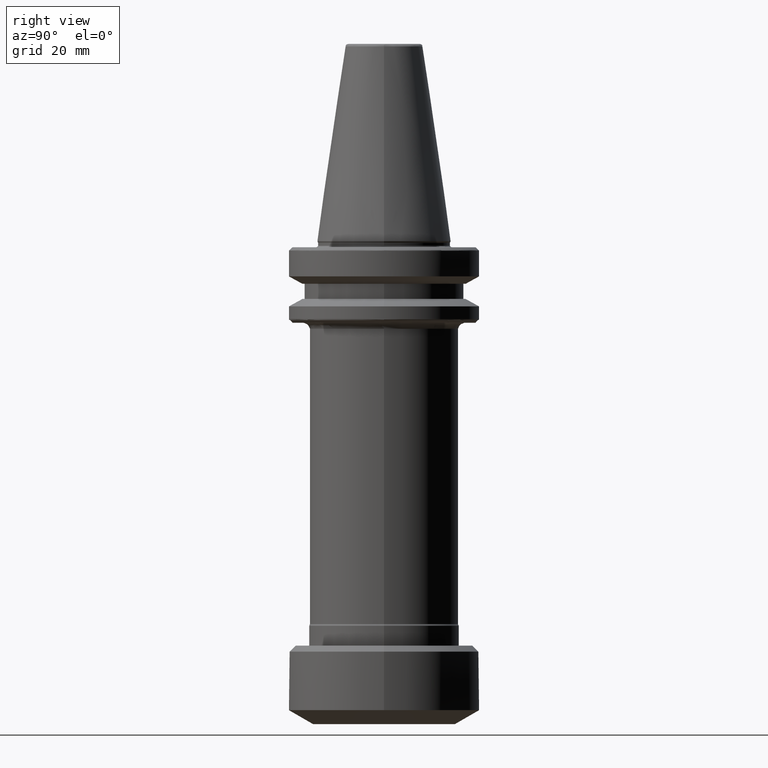
[diagram: clean part render]
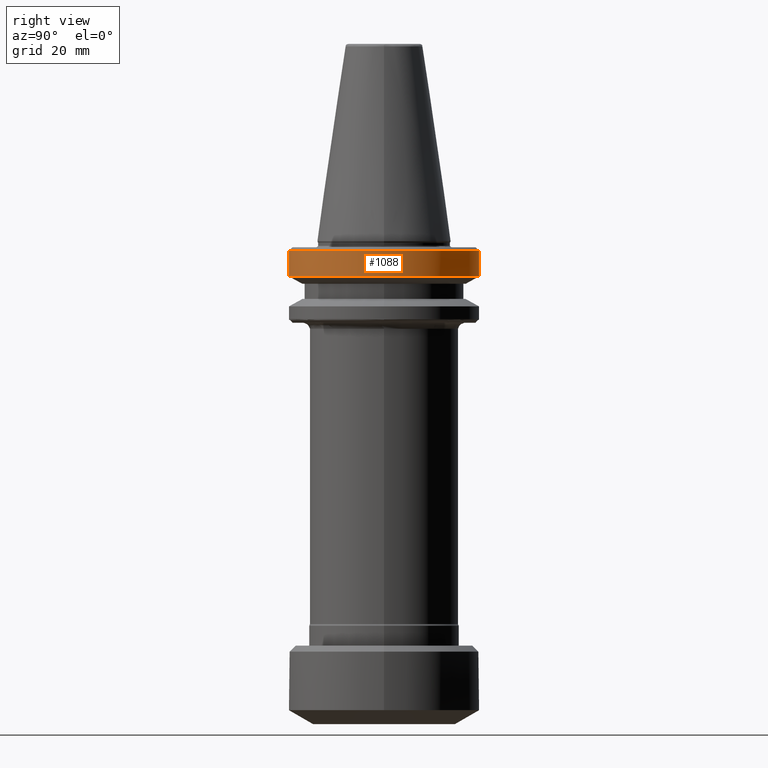
[diagram: same view with one face highlighted and labeled with its STEP entity id]
A machine part, right view. The second image highlights one B-rep face of the part: STEP entity #1088.
In plain terms, the highlighted cylindrical surface (partial cylindrical patch) has radius 31.5 mm, axis along (0, -0, 1).
Its self-contained STEP definition (entity closure, byte-faithful):
#42 = CARTESIAN_POINT ( 'NONE',  ( 0.0000000000000000000, -31.50000000001133300, -3.165685425006476100 ) ) ;
#100 = DIRECTION ( 'NONE',  ( 1.000000000000000000, 0.0000000000000000000, 0.0000000000000000000 ) ) ;
#138 = ORIENTED_EDGE ( 'NONE', *, *, #1094, .F. ) ;
#189 = CARTESIAN_POINT ( 'NONE',  ( 0.0000000000000000000, 0.0000000000000000000, -11.63768073232979100 ) ) ;
#224 = EDGE_CURVE ( 'NONE', #1547, #2257, #3121, .T. ) ;
#537 = VERTEX_POINT ( 'NONE', #42 ) ;
#672 = AXIS2_PLACEMENT_3D ( 'NONE', #3294, #1688, #100 ) ;
#696 = DIRECTION ( 'NONE',  ( 1.000000000000000000, 0.0000000000000000000, -1.514441129821022100E-016 ) ) ;
#779 = CARTESIAN_POINT ( 'NONE',  ( 31.50000000000453000, 0.0000000000000000000, -11.63768073232979100 ) ) ;
#876 = CIRCLE ( 'NONE', #672, 31.50000000000453000 ) ;
#955 = CARTESIAN_POINT ( 'NONE',  ( 31.50000000000453000, -2.828499295505090300E-009, -3.165685425006476100 ) ) ;
#1009 = CARTESIAN_POINT ( 'NONE',  ( 0.0000000000000000000, 0.0000000000000000000, -11.59985799400000100 ) ) ;
#1032 = DIRECTION ( 'NONE',  ( 0.0000000000000000000, -2.753529326947312600E-017, 1.000000000000000000 ) ) ;
#1088 = ADVANCED_FACE ( 'NONE', ( #3043 ), #1556, .T. ) ;
#1094 = EDGE_CURVE ( 'NONE', #2910, #2382, #2428, .T. ) ;
#1165 = EDGE_CURVE ( 'NONE', #537, #2529, #2226, .T. ) ;
#1266 = CARTESIAN_POINT ( 'NONE',  ( 3.857637417315550300E-015, 31.50000000001133300, -3.165685425006476100 ) ) ;
#1291 = CARTESIAN_POINT ( 'NONE',  ( 3.857637417314162700E-015, 31.50000000000000000, -11.59985799400000100 ) ) ;
#1327 = VECTOR ( 'NONE', #3162, 1000.000000000000000 ) ;
#1425 = LINE ( 'NONE', #2543, #2756 ) ;
#1438 = EDGE_CURVE ( 'NONE', #2529, #2910, #2638, .T. ) ;
#1506 = DIRECTION ( 'NONE',  ( -0.0000000000000000000, -0.0000000000000000000, 1.000000000000000000 ) ) ;
#1510 = DIRECTION ( 'NONE',  ( -0.0000000000000000000, -0.0000000000000000000, 1.000000000000000000 ) ) ;
#1547 = VERTEX_POINT ( 'NONE', #779 ) ;
#1556 = CYLINDRICAL_SURFACE ( 'NONE', #2511, 31.50000000000000000 ) ;
#1562 = AXIS2_PLACEMENT_3D ( 'NONE', #189, #1506, #2547 ) ;
#1564 = DIRECTION ( 'NONE',  ( 0.0000000000000000000, 0.0000000000000000000, 1.000000000000000000 ) ) ;
#1634 = EDGE_LOOP ( 'NONE', ( #3182, #2837, #2960, #138, #2920, #1884, #2341, #3272 ) ) ;
#1688 = DIRECTION ( 'NONE',  ( -0.0000000000000000000, -0.0000000000000000000, 1.000000000000000000 ) ) ;
#1731 = DIRECTION ( 'NONE',  ( 0.0000000000000000000, 0.0000000000000000000, 1.000000000000000000 ) ) ;
#1787 = LINE ( 'NONE', #1291, #1327 ) ;
#1825 = CARTESIAN_POINT ( 'NONE',  ( 8.599437156279416100, 30.30345987827941600, -3.165685425344570100 ) ) ;
#1856 = DIRECTION ( 'NONE',  ( 0.0000000000000000000, -1.000000000000000000, 0.0000000000000000000 ) ) ;
#1871 = EDGE_CURVE ( 'NONE', #2126, #537, #1425, .T. ) ;
#1884 = ORIENTED_EDGE ( 'NONE', *, *, #1165, .F. ) ;
#1924 = CARTESIAN_POINT ( 'NONE',  ( 8.717453372812725500, -30.26972095489103200, -3.165685425816283000 ) ) ;
#1979 = AXIS2_PLACEMENT_3D ( 'NONE', #2411, #1731, #696 ) ;
#2126 = VERTEX_POINT ( 'NONE', #3053 ) ;
#2189 = EDGE_CURVE ( 'NONE', #2382, #2218, #2214, .T. ) ;
#2214 = CIRCLE ( 'NONE', #3075, 31.50000000001133300 ) ;
#2218 = VERTEX_POINT ( 'NONE', #1266 ) ;
#2226 = CIRCLE ( 'NONE', #3412, 31.50000000001133300 ) ;
#2257 = VERTEX_POINT ( 'NONE', #3149 ) ;
#2340 = EDGE_CURVE ( 'NONE', #2257, #2218, #1787, .T. ) ;
#2341 = ORIENTED_EDGE ( 'NONE', *, *, #1871, .F. ) ;
#2382 = VERTEX_POINT ( 'NONE', #1825 ) ;
#2411 = CARTESIAN_POINT ( 'NONE',  ( 0.0000000000000000000, 0.0000000000000000000, -3.165685424999995100 ) ) ;
#2428 = CIRCLE ( 'NONE', #1979, 31.50000000000000000 ) ;
#2495 = AXIS2_PLACEMENT_3D ( 'NONE', #3163, #1564, #3431 ) ;
#2511 = AXIS2_PLACEMENT_3D ( 'NONE', #1009, #1032, #1856 ) ;
#2529 = VERTEX_POINT ( 'NONE', #1924 ) ;
#2543 = CARTESIAN_POINT ( 'NONE',  ( 0.0000000000000000000, -31.50000000000000000, -11.59985799400000100 ) ) ;
#2547 = DIRECTION ( 'NONE',  ( 1.000000000000000000, 0.0000000000000000000, 0.0000000000000000000 ) ) ;
#2638 = CIRCLE ( 'NONE', #2495, 31.50000000000000000 ) ;
#2756 = VECTOR ( 'NONE', #3077, 1000.000000000000000 ) ;
#2837 = ORIENTED_EDGE ( 'NONE', *, *, #2340, .T. ) ;
#2910 = VERTEX_POINT ( 'NONE', #955 ) ;
#2920 = ORIENTED_EDGE ( 'NONE', *, *, #1438, .F. ) ;
#2960 = ORIENTED_EDGE ( 'NONE', *, *, #2189, .F. ) ;
#3043 = FACE_OUTER_BOUND ( 'NONE', #1634, .T. ) ;
#3053 = CARTESIAN_POINT ( 'NONE',  ( 0.0000000000000000000, -31.50000000000453000, -11.63768073232979100 ) ) ;
#3075 = AXIS2_PLACEMENT_3D ( 'NONE', #3107, #1510, #3386 ) ;
#3077 = DIRECTION ( 'NONE',  ( 0.0000000000000000000, -2.753529326947312600E-017, 1.000000000000000000 ) ) ;
#3107 = CARTESIAN_POINT ( 'NONE',  ( 0.0000000000000000000, 0.0000000000000000000, -3.165685425006476100 ) ) ;
#3121 = CIRCLE ( 'NONE', #1562, 31.50000000000453000 ) ;
#3149 = CARTESIAN_POINT ( 'NONE',  ( 3.857637417314718000E-015, 31.50000000000453000, -11.63768073232979100 ) ) ;
#3162 = DIRECTION ( 'NONE',  ( 0.0000000000000000000, -2.753529326947312600E-017, 1.000000000000000000 ) ) ;
#3163 = CARTESIAN_POINT ( 'NONE',  ( 0.0000000000000000000, 0.0000000000000000000, -3.165685424999995100 ) ) ;
#3182 = ORIENTED_EDGE ( 'NONE', *, *, #224, .T. ) ;
#3198 = DIRECTION ( 'NONE',  ( 1.000000000000000000, 0.0000000000000000000, 0.0000000000000000000 ) ) ;
#3209 = DIRECTION ( 'NONE',  ( -0.0000000000000000000, -0.0000000000000000000, 1.000000000000000000 ) ) ;
#3222 = CARTESIAN_POINT ( 'NONE',  ( 0.0000000000000000000, 0.0000000000000000000, -3.165685425006476100 ) ) ;
#3272 = ORIENTED_EDGE ( 'NONE', *, *, #3324, .T. ) ;
#3294 = CARTESIAN_POINT ( 'NONE',  ( 0.0000000000000000000, 0.0000000000000000000, -11.63768073232979100 ) ) ;
#3324 = EDGE_CURVE ( 'NONE', #2126, #1547, #876, .T. ) ;
#3386 = DIRECTION ( 'NONE',  ( 1.000000000000000000, 0.0000000000000000000, 0.0000000000000000000 ) ) ;
#3412 = AXIS2_PLACEMENT_3D ( 'NONE', #3222, #3209, #3198 ) ;
#3431 = DIRECTION ( 'NONE',  ( 1.000000000000000000, 0.0000000000000000000, -1.514441129821022100E-016 ) ) ;